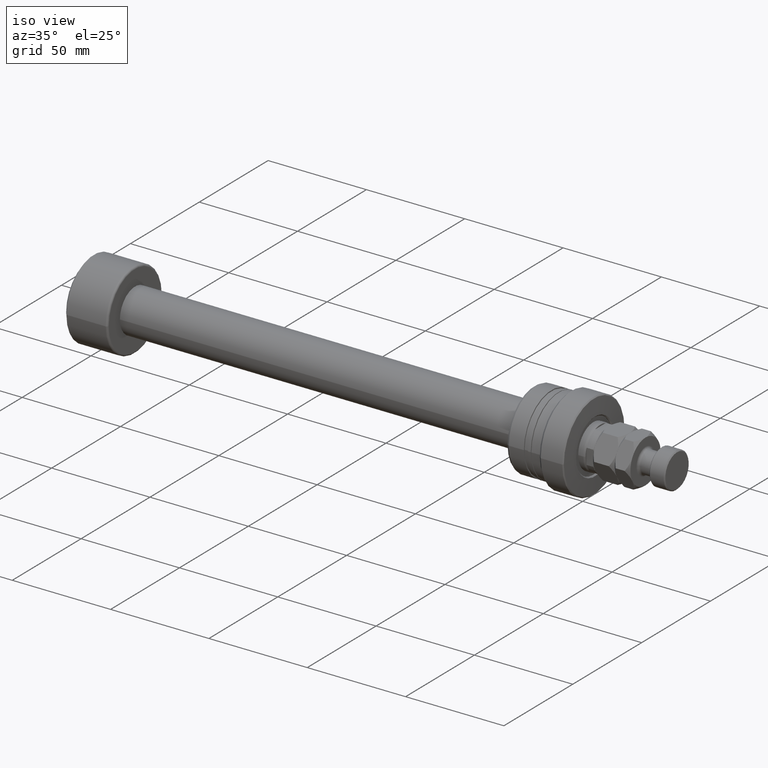
[diagram: clean part render]
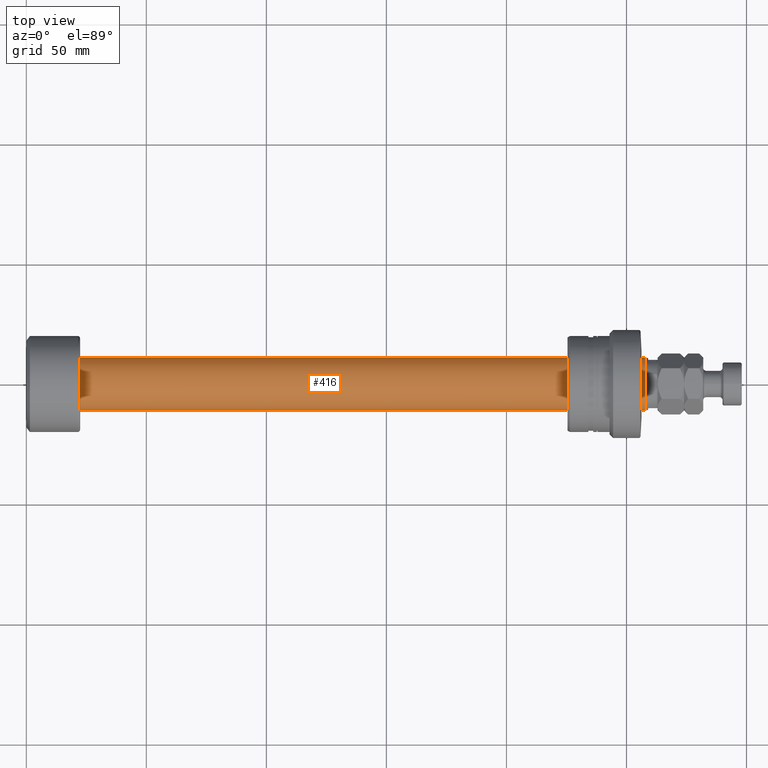
[diagram: tour spotlight — one face highlighted and labeled with its STEP entity id]
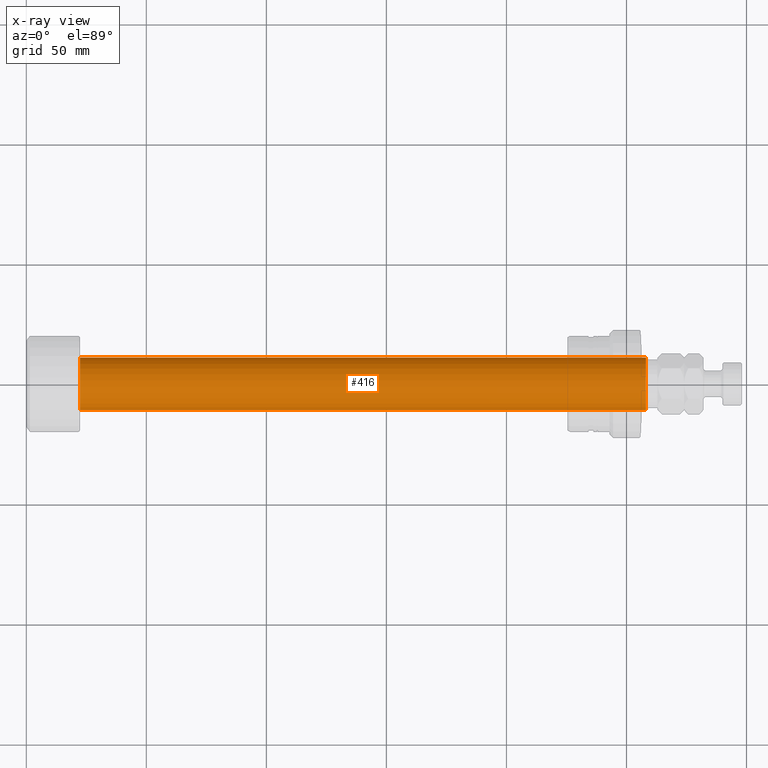
[diagram: x-ray of the same camera — body ghosted, this tour face saturated]
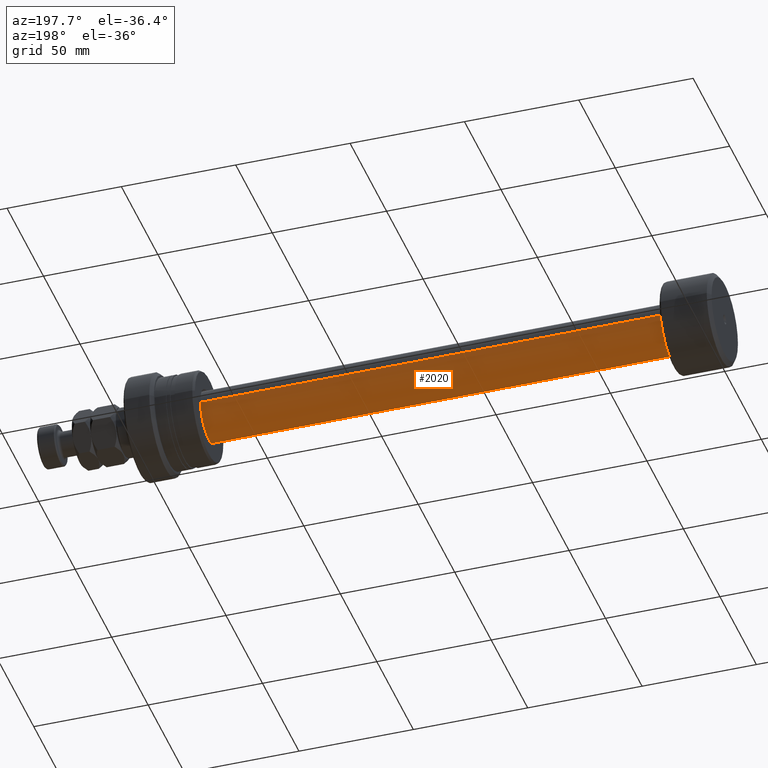
[diagram: tour spotlight — one face highlighted and labeled with its STEP entity id]
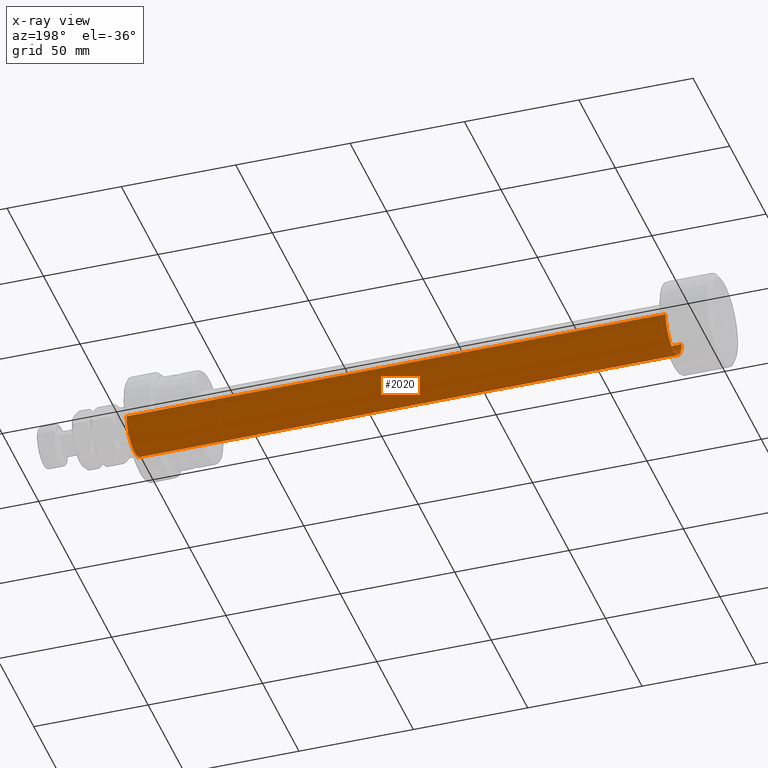
[diagram: x-ray of the same camera — body ghosted, this tour face saturated]
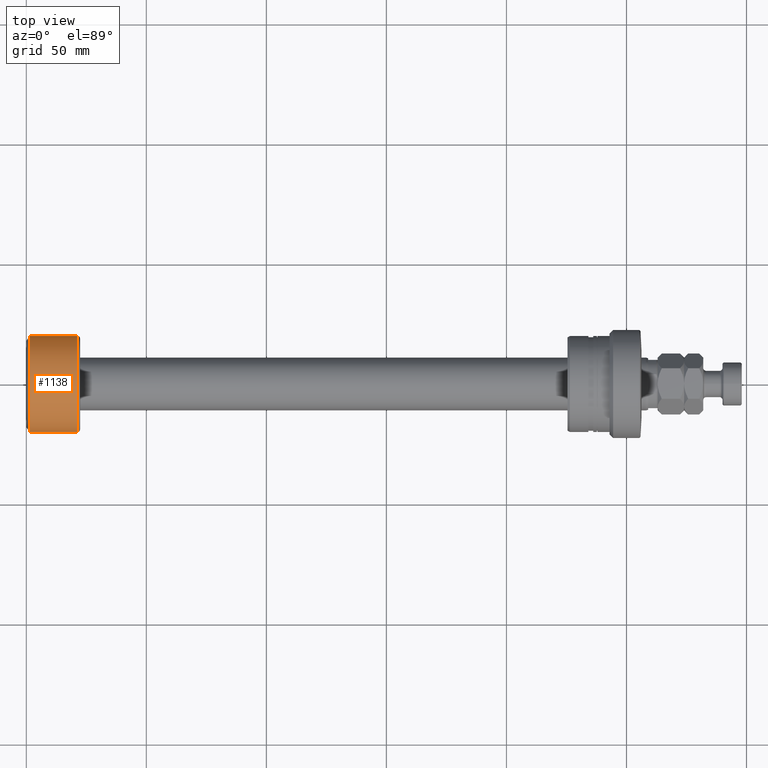
[diagram: tour spotlight — one face highlighted and labeled with its STEP entity id]
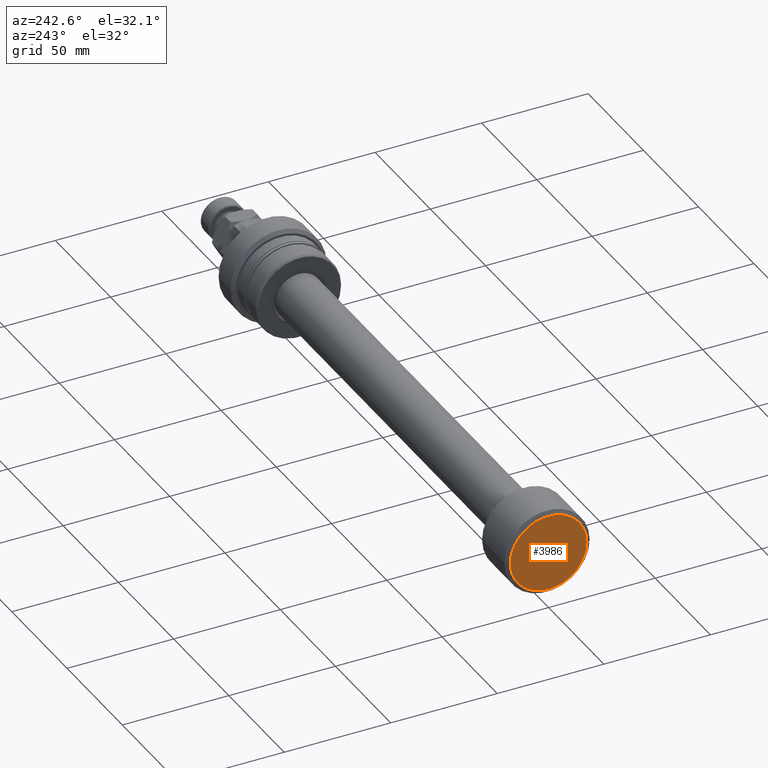
[diagram: tour spotlight — one face highlighted and labeled with its STEP entity id]
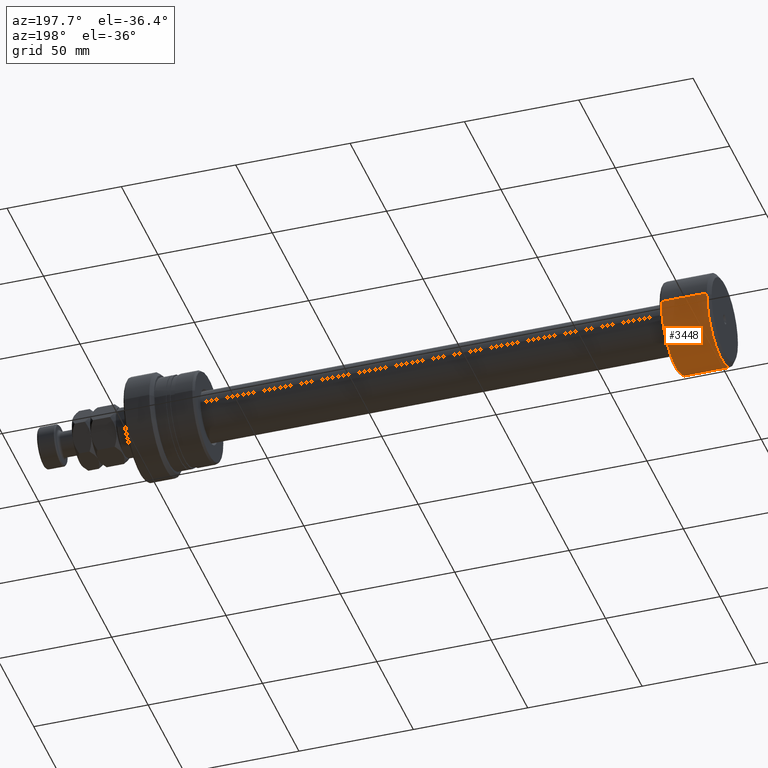
[diagram: tour spotlight — one face highlighted and labeled with its STEP entity id]
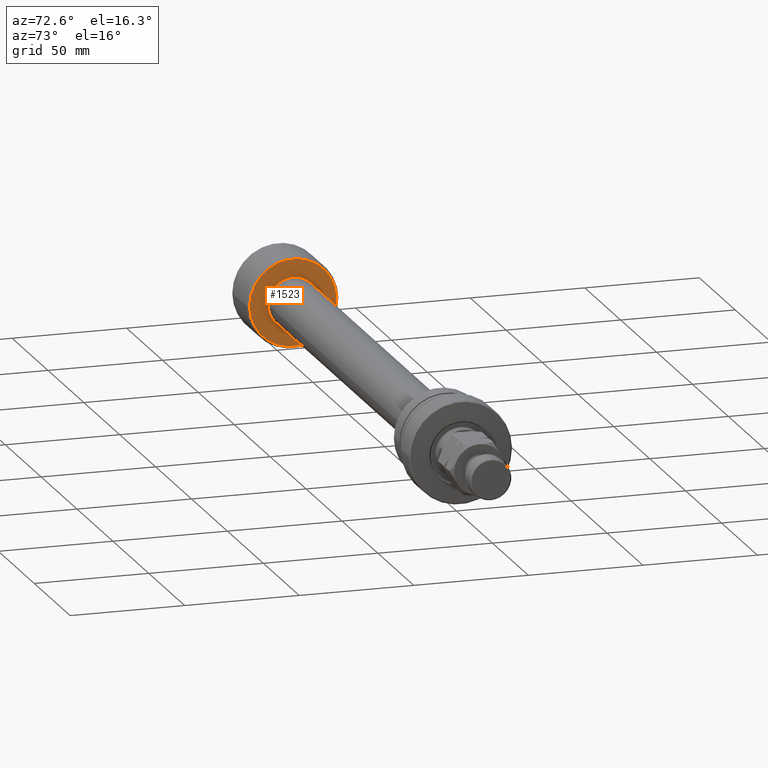
[diagram: tour spotlight — one face highlighted and labeled with its STEP entity id]
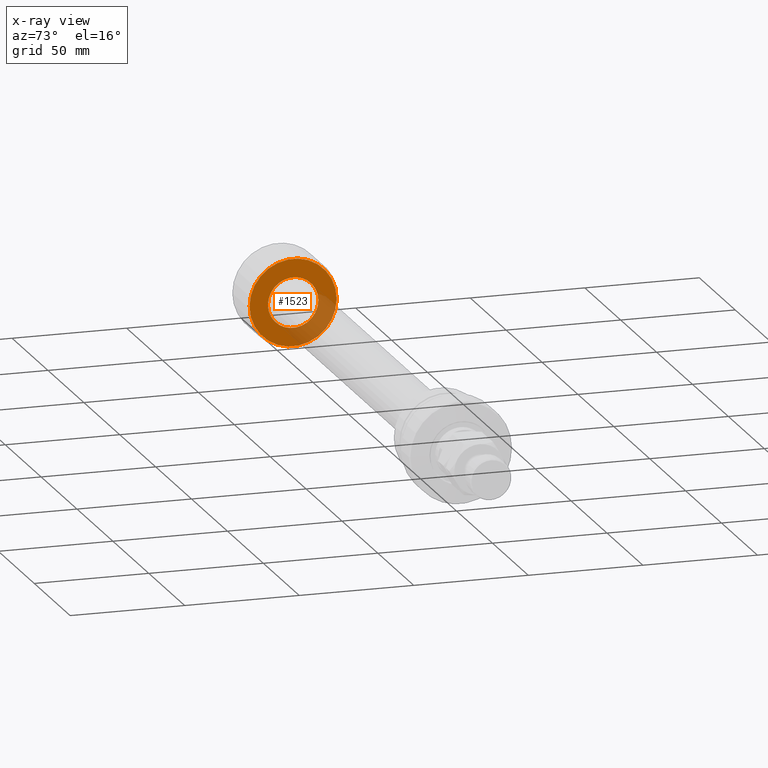
[diagram: x-ray of the same camera — body ghosted, this tour face saturated]
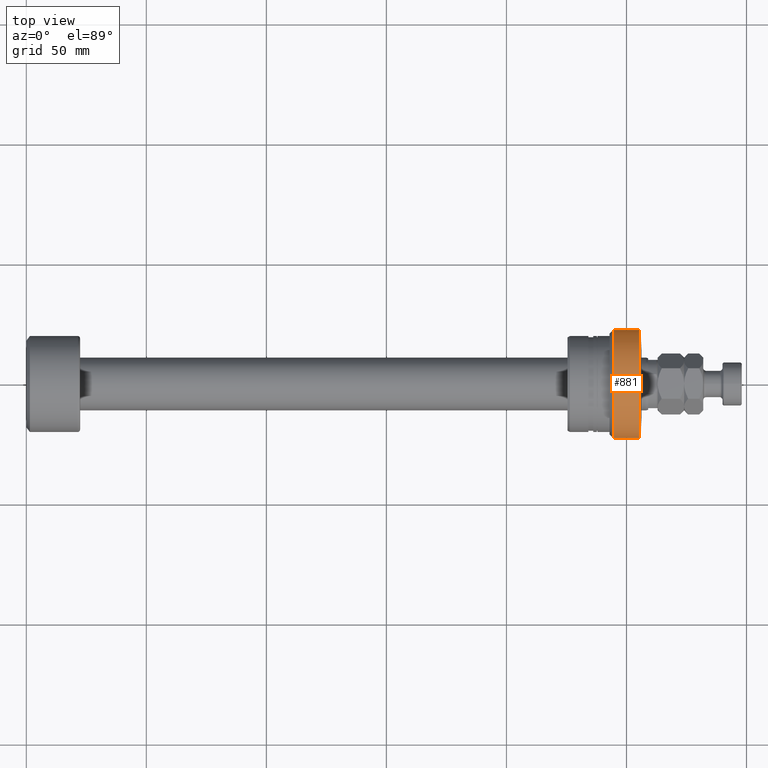
[diagram: tour spotlight — one face highlighted and labeled with its STEP entity id]
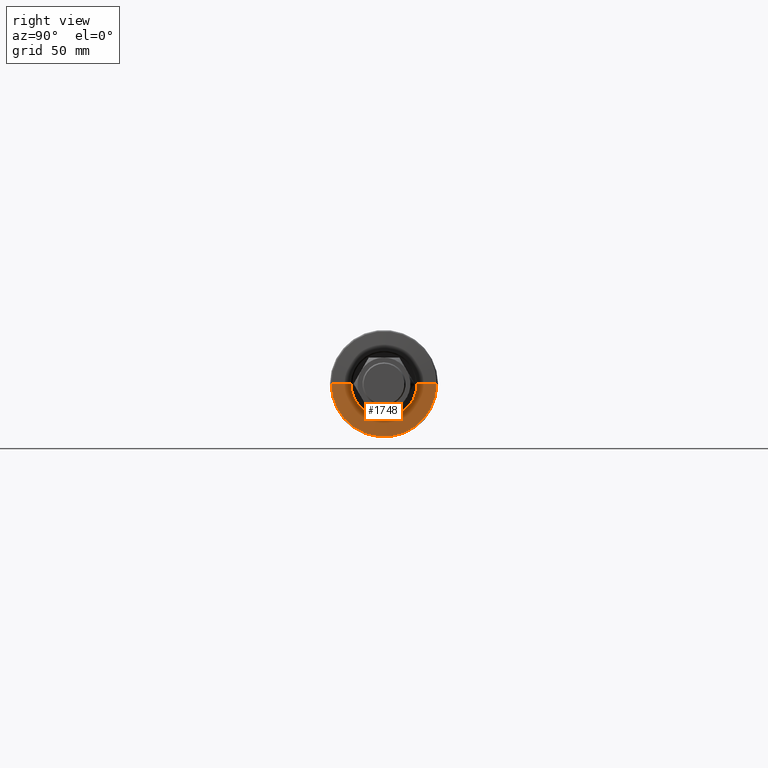
[diagram: tour spotlight — one face highlighted and labeled with its STEP entity id]
A machine part: a face-by-face anatomy tour. The part has 131 B-rep faces; the first image is the clean iso view, then the 8 largest visible faces are spotlighted one at a time (largest first), each with its STEP entity span.

Face 1 — top view, entity #416. An x-ray twin of the same camera follows (body ghosted, this face saturated) — the face is partly hidden behind the body. In plain terms, the highlighted cylindrical surface (edge-blend (fillet) strip) has radius 11 mm, axis along (-1, -0, -0).
Definition (entity closure, byte-faithful):
#199 = DIRECTION ( 'NONE',  ( -1.000000000000000000, -1.069542322069065801E-17, -0.000000000000000000 ) ) ;
#393 = EDGE_CURVE ( 'NONE', #2122, #2797, #2016, .T. ) ;
#416 = ADVANCED_FACE ( 'NONE', ( #3075 ), #3095, .T. ) ;
#436 = DIRECTION ( 'NONE',  ( -1.000000000000000000, -1.069542322069065801E-17, -0.000000000000000000 ) ) ;
#506 = ORIENTED_EDGE ( 'NONE', *, *, #393, .T. ) ;
#537 = DIRECTION ( 'NONE',  ( -1.000000000000000000, -1.069542322069065801E-17, -0.000000000000000000 ) ) ;
#579 = CARTESIAN_POINT ( 'NONE',  ( 258.0667575123237611, -11.00000000000019362, 0.000000000000000000 ) ) ;
#830 = AXIS2_PLACEMENT_3D ( 'NONE', #924, #537, #2183 ) ;
#897 = VECTOR ( 'NONE', #3565, 1000.000000000000000 ) ;
#920 = CARTESIAN_POINT ( 'NONE',  ( 22.40000000000000924, 11.00000000000000000, 1.347111479062094518E-15 ) ) ;
#924 = CARTESIAN_POINT ( 'NONE',  ( 258.0667575123237611, 2.760133190785652966E-15, 0.000000000000000000 ) ) ;
#944 = EDGE_CURVE ( 'NONE', #2329, #2797, #1421, .T. ) ;
#991 = CARTESIAN_POINT ( 'NONE',  ( 1.176496554275982935E-16, -11.00000000000009770, 0.000000000000000000 ) ) ;
#1118 = CARTESIAN_POINT ( 'NONE',  ( 22.40000000000000924, 2.395774801434708725E-16, 0.000000000000000000 ) ) ;
#1122 = CARTESIAN_POINT ( 'NONE',  ( 22.40000000000000924, -11.00000000000000000, 0.000000000000000000 ) ) ;
#1212 = ORIENTED_EDGE ( 'NONE', *, *, #2457, .T. ) ;
#1345 = EDGE_LOOP ( 'NONE', ( #1212, #506, #2593, #2568 ) ) ;
#1359 = AXIS2_PLACEMENT_3D ( 'NONE', #2175, #1557, #1496 ) ;
#1421 = CIRCLE ( 'NONE', #3633, 11.00000000000000000 ) ;
#1496 = DIRECTION ( 'NONE',  ( 1.069542322069065955E-17, -1.000000000000000000, 0.000000000000000000 ) ) ;
#1557 = DIRECTION ( 'NONE',  ( -1.000000000000000000, -1.069542322069065801E-17, -0.000000000000000000 ) ) ;
#1632 = VERTEX_POINT ( 'NONE', #579 ) ;
#2016 = LINE ( 'NONE', #3274, #3208 ) ;
#2021 = CARTESIAN_POINT ( 'NONE',  ( 258.0667575123237611, 11.00000000000020073, 1.347111479062112859E-15 ) ) ;
#2122 = VERTEX_POINT ( 'NONE', #2021 ) ;
#2175 = CARTESIAN_POINT ( 'NONE',  ( 0.000000000000000000, 0.000000000000000000, 0.000000000000000000 ) ) ;
#2183 = DIRECTION ( 'NONE',  ( 0.000000000000000000, -1.000000000000000000, 0.000000000000000000 ) ) ;
#2329 = VERTEX_POINT ( 'NONE', #1122 ) ;
#2457 = EDGE_CURVE ( 'NONE', #1632, #2122, #2878, .T. ) ;
#2568 = ORIENTED_EDGE ( 'NONE', *, *, #3041, .F. ) ;
#2593 = ORIENTED_EDGE ( 'NONE', *, *, #944, .F. ) ;
#2797 = VERTEX_POINT ( 'NONE', #920 ) ;
#2864 = LINE ( 'NONE', #991, #897 ) ;
#2878 = CIRCLE ( 'NONE', #830, 11.00000000000019718 ) ;
#3041 = EDGE_CURVE ( 'NONE', #1632, #2329, #2864, .T. ) ;
#3075 = FACE_OUTER_BOUND ( 'NONE', #1345, .T. ) ;
#3095 = CYLINDRICAL_SURFACE ( 'NONE', #1359, 11.00000000000009770 ) ;
#3208 = VECTOR ( 'NONE', #436, 1000.000000000000000 ) ;
#3274 = CARTESIAN_POINT ( 'NONE',  ( -1.176496554275982935E-16, 11.00000000000009770, 1.347111479062100632E-15 ) ) ;
#3565 = DIRECTION ( 'NONE',  ( -1.000000000000000000, -1.069542322069065801E-17, -0.000000000000000000 ) ) ;
#3633 = AXIS2_PLACEMENT_3D ( 'NONE', #1118, #199, #3702 ) ;
#3702 = DIRECTION ( 'NONE',  ( 0.000000000000000000, -1.000000000000000000, 0.000000000000000000 ) ) ;

Face 2 — auxiliary view, entity #2020. An x-ray twin of the same camera follows (body ghosted, this face saturated) — the face is partly hidden behind the body. In plain terms, the highlighted cylindrical surface (edge-blend (fillet) strip) has radius 11 mm, axis along (-1, -0, -0).
Definition (entity closure, byte-faithful):
#15 = AXIS2_PLACEMENT_3D ( 'NONE', #1736, #3552, #432 ) ;
#88 = DIRECTION ( 'NONE',  ( -1.000000000000000000, -1.069542322069065801E-17, -0.000000000000000000 ) ) ;
#364 = CARTESIAN_POINT ( 'NONE',  ( 22.40000000000000924, 2.395774801434708725E-16, 0.000000000000000000 ) ) ;
#393 = EDGE_CURVE ( 'NONE', #2122, #2797, #2016, .T. ) ;
#401 = FACE_OUTER_BOUND ( 'NONE', #2489, .T. ) ;
#432 = DIRECTION ( 'NONE',  ( 0.000000000000000000, -1.000000000000000000, 0.000000000000000000 ) ) ;
#436 = DIRECTION ( 'NONE',  ( -1.000000000000000000, -1.069542322069065801E-17, -0.000000000000000000 ) ) ;
#579 = CARTESIAN_POINT ( 'NONE',  ( 258.0667575123237611, -11.00000000000019362, 0.000000000000000000 ) ) ;
#632 = ORIENTED_EDGE ( 'NONE', *, *, #3041, .T. ) ;
#701 = DIRECTION ( 'NONE',  ( 0.000000000000000000, -1.000000000000000000, 0.000000000000000000 ) ) ;
#897 = VECTOR ( 'NONE', #3565, 1000.000000000000000 ) ;
#920 = CARTESIAN_POINT ( 'NONE',  ( 22.40000000000000924, 11.00000000000000000, 1.347111479062094518E-15 ) ) ;
#991 = CARTESIAN_POINT ( 'NONE',  ( 1.176496554275982935E-16, -11.00000000000009770, 0.000000000000000000 ) ) ;
#1059 = EDGE_CURVE ( 'NONE', #2122, #1632, #3292, .T. ) ;
#1095 = AXIS2_PLACEMENT_3D ( 'NONE', #1960, #88, #2322 ) ;
#1122 = CARTESIAN_POINT ( 'NONE',  ( 22.40000000000000924, -11.00000000000000000, 0.000000000000000000 ) ) ;
#1632 = VERTEX_POINT ( 'NONE', #579 ) ;
#1654 = ORIENTED_EDGE ( 'NONE', *, *, #2563, .F. ) ;
#1736 = CARTESIAN_POINT ( 'NONE',  ( 258.0667575123237611, 2.760133190785652966E-15, 0.000000000000000000 ) ) ;
#1960 = CARTESIAN_POINT ( 'NONE',  ( 0.000000000000000000, 0.000000000000000000, 0.000000000000000000 ) ) ;
#2016 = LINE ( 'NONE', #3274, #3208 ) ;
#2020 = ADVANCED_FACE ( 'NONE', ( #401 ), #4106, .T. ) ;
#2021 = CARTESIAN_POINT ( 'NONE',  ( 258.0667575123237611, 11.00000000000020073, 1.347111479062112859E-15 ) ) ;
#2122 = VERTEX_POINT ( 'NONE', #2021 ) ;
#2270 = DIRECTION ( 'NONE',  ( -1.000000000000000000, -1.069542322069065801E-17, -0.000000000000000000 ) ) ;
#2284 = CIRCLE ( 'NONE', #3930, 11.00000000000000000 ) ;
#2322 = DIRECTION ( 'NONE',  ( 1.069542322069065955E-17, -1.000000000000000000, 0.000000000000000000 ) ) ;
#2329 = VERTEX_POINT ( 'NONE', #1122 ) ;
#2489 = EDGE_LOOP ( 'NONE', ( #3191, #3185, #632, #1654 ) ) ;
#2563 = EDGE_CURVE ( 'NONE', #2797, #2329, #2284, .T. ) ;
#2797 = VERTEX_POINT ( 'NONE', #920 ) ;
#2864 = LINE ( 'NONE', #991, #897 ) ;
#3041 = EDGE_CURVE ( 'NONE', #1632, #2329, #2864, .T. ) ;
#3185 = ORIENTED_EDGE ( 'NONE', *, *, #1059, .T. ) ;
#3191 = ORIENTED_EDGE ( 'NONE', *, *, #393, .F. ) ;
#3208 = VECTOR ( 'NONE', #436, 1000.000000000000000 ) ;
#3274 = CARTESIAN_POINT ( 'NONE',  ( -1.176496554275982935E-16, 11.00000000000009770, 1.347111479062100632E-15 ) ) ;
#3292 = CIRCLE ( 'NONE', #15, 11.00000000000019718 ) ;
#3552 = DIRECTION ( 'NONE',  ( -1.000000000000000000, -1.069542322069065801E-17, -0.000000000000000000 ) ) ;
#3565 = DIRECTION ( 'NONE',  ( -1.000000000000000000, -1.069542322069065801E-17, -0.000000000000000000 ) ) ;
#3930 = AXIS2_PLACEMENT_3D ( 'NONE', #364, #2270, #701 ) ;
#4106 = CYLINDRICAL_SURFACE ( 'NONE', #1095, 11.00000000000009770 ) ;

Face 3 — top view, entity #1138. In plain terms, the highlighted cylindrical surface (partial cylindrical patch) has radius 20 mm, axis along (-1, -0, -0).
Definition (entity closure, byte-faithful):
#105 = DIRECTION ( 'NONE',  ( -1.000000000000000000, -1.069542322069065801E-17, -0.000000000000000000 ) ) ;
#151 = DIRECTION ( 'NONE',  ( -1.000000000000000000, -1.069542322069065801E-17, -0.000000000000000000 ) ) ;
#191 = CARTESIAN_POINT ( 'NONE',  ( -2.139084644138131786E-16, 20.00000000000000000, 2.449293598294706513E-15 ) ) ;
#371 = AXIS2_PLACEMENT_3D ( 'NONE', #1265, #4080, #628 ) ;
#383 = LINE ( 'NONE', #191, #2955 ) ;
#501 = CIRCLE ( 'NONE', #371, 20.00000000000000000 ) ;
#538 = CARTESIAN_POINT ( 'NONE',  ( 1.500000000000002887, -20.00000000000000000, 2.449293598294706513E-15 ) ) ;
#620 = CIRCLE ( 'NONE', #1764, 20.00000000000000000 ) ;
#628 = DIRECTION ( 'NONE',  ( 1.084202172485504434E-17, -1.000000000000000000, 0.000000000000000000 ) ) ;
#738 = CARTESIAN_POINT ( 'NONE',  ( 2.139084644138131786E-16, -20.00000000000000000, 0.000000000000000000 ) ) ;
#744 = FACE_OUTER_BOUND ( 'NONE', #1313, .T. ) ;
#1138 = ADVANCED_FACE ( 'NONE', ( #744 ), #3271, .T. ) ;
#1177 = VERTEX_POINT ( 'NONE', #1504 ) ;
#1265 = CARTESIAN_POINT ( 'NONE',  ( 1.500000000000002442, 1.604313483103601552E-17, 0.000000000000000000 ) ) ;
#1313 = EDGE_LOOP ( 'NONE', ( #2792, #3159, #1527, #1561 ) ) ;
#1392 = DIRECTION ( 'NONE',  ( -1.000000000000000000, -1.069542322069065801E-17, -0.000000000000000000 ) ) ;
#1405 = DIRECTION ( 'NONE',  ( 1.069542322069065955E-17, -1.000000000000000000, 0.000000000000000000 ) ) ;
#1411 = DIRECTION ( 'NONE',  ( 0.000000000000000000, -1.000000000000000000, 0.000000000000000000 ) ) ;
#1504 = CARTESIAN_POINT ( 'NONE',  ( 21.40000000000000924, -20.00000000000000000, 0.000000000000000000 ) ) ;
#1527 = ORIENTED_EDGE ( 'NONE', *, *, #2854, .F. ) ;
#1561 = ORIENTED_EDGE ( 'NONE', *, *, #1722, .F. ) ;
#1722 = EDGE_CURVE ( 'NONE', #1177, #3720, #2364, .T. ) ;
#1764 = AXIS2_PLACEMENT_3D ( 'NONE', #3310, #151, #1411 ) ;
#1769 = EDGE_CURVE ( 'NONE', #1177, #3992, #620, .T. ) ;
#1884 = CARTESIAN_POINT ( 'NONE',  ( 1.500000000000002442, 20.00000000000000000, 0.000000000000000000 ) ) ;
#2079 = AXIS2_PLACEMENT_3D ( 'NONE', #2957, #105, #1405 ) ;
#2364 = LINE ( 'NONE', #738, #3212 ) ;
#2379 = DIRECTION ( 'NONE',  ( -1.000000000000000000, -1.069542322069065801E-17, -0.000000000000000000 ) ) ;
#2792 = ORIENTED_EDGE ( 'NONE', *, *, #1769, .T. ) ;
#2823 = VERTEX_POINT ( 'NONE', #1884 ) ;
#2854 = EDGE_CURVE ( 'NONE', #3720, #2823, #501, .T. ) ;
#2955 = VECTOR ( 'NONE', #2379, 1000.000000000000000 ) ;
#2957 = CARTESIAN_POINT ( 'NONE',  ( 0.000000000000000000, 0.000000000000000000, 0.000000000000000000 ) ) ;
#3089 = EDGE_CURVE ( 'NONE', #3992, #2823, #383, .T. ) ;
#3159 = ORIENTED_EDGE ( 'NONE', *, *, #3089, .T. ) ;
#3212 = VECTOR ( 'NONE', #1392, 1000.000000000000000 ) ;
#3271 = CYLINDRICAL_SURFACE ( 'NONE', #2079, 20.00000000000000000 ) ;
#3310 = CARTESIAN_POINT ( 'NONE',  ( 21.40000000000000924, 2.288820569227802283E-16, 0.000000000000000000 ) ) ;
#3356 = CARTESIAN_POINT ( 'NONE',  ( 21.40000000000000924, 20.00000000000000000, 2.449293598294706513E-15 ) ) ;
#3720 = VERTEX_POINT ( 'NONE', #538 ) ;
#3992 = VERTEX_POINT ( 'NONE', #3356 ) ;
#4080 = DIRECTION ( 'NONE',  ( -1.000000000000000000, -1.069542322069065801E-17, -0.000000000000000000 ) ) ;

Face 4 — auxiliary view, entity #3986. In plain terms, the highlighted planar face has unit normal (-1, -0, 0).
Definition (entity closure, byte-faithful):
#288 = ORIENTED_EDGE ( 'NONE', *, *, #2177, .T. ) ;
#325 = VERTEX_POINT ( 'NONE', #1998 ) ;
#373 = AXIS2_PLACEMENT_3D ( 'NONE', #562, #3157, #3090 ) ;
#480 = DIRECTION ( 'NONE',  ( -1.000000000000000000, -1.069542322069065801E-17, 0.000000000000000000 ) ) ;
#559 = DIRECTION ( 'NONE',  ( 1.069542322069065647E-17, -1.000000000000000000, 0.000000000000000000 ) ) ;
#562 = CARTESIAN_POINT ( 'NONE',  ( 2.011846620492804129E-15, 2.151755106128676308E-32, 0.000000000000000000 ) ) ;
#630 = AXIS2_PLACEMENT_3D ( 'NONE', #2849, #2869, #945 ) ;
#643 = EDGE_CURVE ( 'NONE', #2198, #4103, #3280, .T. ) ;
#854 = DIRECTION ( 'NONE',  ( -1.000000000000000000, -1.069542322069065801E-17, -0.000000000000000000 ) ) ;
#945 = DIRECTION ( 'NONE',  ( 1.069542322069064722E-17, -1.000000000000000000, 0.000000000000000000 ) ) ;
#1142 = CARTESIAN_POINT ( 'NONE',  ( 1.005923310246402065E-15, 0.000000000000000000, 0.000000000000000000 ) ) ;
#1413 = ORIENTED_EDGE ( 'NONE', *, *, #3323, .T. ) ;
#1480 = ORIENTED_EDGE ( 'NONE', *, *, #2410, .T. ) ;
#1739 = CARTESIAN_POINT ( 'NONE',  ( 1.005923310246402065E-15, 1.075877553064338154E-32, 0.000000000000000000 ) ) ;
#1878 = CARTESIAN_POINT ( 'NONE',  ( 2.011846620492804129E-15, 2.151755106128676308E-32, 0.000000000000000000 ) ) ;
#1998 = CARTESIAN_POINT ( 'NONE',  ( 1.005923310246402065E-15, 0.000000000000000000, 2.074999999999965539 ) ) ;
#2147 = CIRCLE ( 'NONE', #3145, 2.074999999999965539 ) ;
#2177 = EDGE_CURVE ( 'NONE', #3507, #325, #2147, .T. ) ;
#2180 = EDGE_LOOP ( 'NONE', ( #1480, #288 ) ) ;
#2198 = VERTEX_POINT ( 'NONE', #2991 ) ;
#2410 = EDGE_CURVE ( 'NONE', #325, #3507, #4057, .T. ) ;
#2476 = DIRECTION ( 'NONE',  ( 1.069542322069064722E-17, -1.000000000000000000, 0.000000000000000000 ) ) ;
#2665 = FACE_BOUND ( 'NONE', #2180, .T. ) ;
#2698 = FACE_OUTER_BOUND ( 'NONE', #4000, .T. ) ;
#2849 = CARTESIAN_POINT ( 'NONE',  ( 1.005923310246402065E-15, 0.000000000000000000, 0.000000000000000000 ) ) ;
#2869 = DIRECTION ( 'NONE',  ( 1.000000000000000000, 1.069542322069065801E-17, 0.000000000000000000 ) ) ;
#2964 = PLANE ( 'NONE',  #3812 ) ;
#2991 = CARTESIAN_POINT ( 'NONE',  ( 2.204364238465235822E-15, -18.00000000000000355, 2.326828918379971365E-15 ) ) ;
#3053 = ORIENTED_EDGE ( 'NONE', *, *, #643, .T. ) ;
#3090 = DIRECTION ( 'NONE',  ( 1.069542322069065647E-17, -1.000000000000000000, 0.000000000000000000 ) ) ;
#3145 = AXIS2_PLACEMENT_3D ( 'NONE', #1142, #4041, #2476 ) ;
#3157 = DIRECTION ( 'NONE',  ( -1.000000000000000000, -1.069542322069065801E-17, -0.000000000000000000 ) ) ;
#3280 = CIRCLE ( 'NONE', #3531, 18.00000000000000355 ) ;
#3323 = EDGE_CURVE ( 'NONE', #4103, #2198, #3354, .T. ) ;
#3354 = CIRCLE ( 'NONE', #373, 18.00000000000000355 ) ;
#3507 = VERTEX_POINT ( 'NONE', #3982 ) ;
#3531 = AXIS2_PLACEMENT_3D ( 'NONE', #1878, #854, #559 ) ;
#3595 = DIRECTION ( 'NONE',  ( 1.069542322069065801E-17, -1.000000000000000000, 0.000000000000000000 ) ) ;
#3752 = CARTESIAN_POINT ( 'NONE',  ( 1.819329002520372041E-15, 18.00000000000000355, 0.000000000000000000 ) ) ;
#3812 = AXIS2_PLACEMENT_3D ( 'NONE', #1739, #480, #3595 ) ;
#3982 = CARTESIAN_POINT ( 'NONE',  ( 1.005923310246402065E-15, 2.541142108230715670E-16, -2.074999999999965539 ) ) ;
#3986 = ADVANCED_FACE ( 'NONE', ( #2665, #2698 ), #2964, .T. ) ;
#4000 = EDGE_LOOP ( 'NONE', ( #1413, #3053 ) ) ;
#4041 = DIRECTION ( 'NONE',  ( 1.000000000000000000, 1.069542322069065801E-17, 0.000000000000000000 ) ) ;
#4057 = CIRCLE ( 'NONE', #630, 2.074999999999965539 ) ;
#4103 = VERTEX_POINT ( 'NONE', #3752 ) ;

Face 5 — auxiliary view, entity #3448. In plain terms, the highlighted cylindrical surface (partial cylindrical patch) has radius 20 mm, axis along (-1, -0, -0).
Definition (entity closure, byte-faithful):
#91 = FACE_OUTER_BOUND ( 'NONE', #2230, .T. ) ;
#191 = CARTESIAN_POINT ( 'NONE',  ( -2.139084644138131786E-16, 20.00000000000000000, 2.449293598294706513E-15 ) ) ;
#322 = DIRECTION ( 'NONE',  ( -1.000000000000000000, -1.069542322069065801E-17, -0.000000000000000000 ) ) ;
#383 = LINE ( 'NONE', #191, #2955 ) ;
#538 = CARTESIAN_POINT ( 'NONE',  ( 1.500000000000002887, -20.00000000000000000, 2.449293598294706513E-15 ) ) ;
#738 = CARTESIAN_POINT ( 'NONE',  ( 2.139084644138131786E-16, -20.00000000000000000, 0.000000000000000000 ) ) ;
#788 = ORIENTED_EDGE ( 'NONE', *, *, #3089, .F. ) ;
#1033 = ORIENTED_EDGE ( 'NONE', *, *, #1606, .T. ) ;
#1177 = VERTEX_POINT ( 'NONE', #1504 ) ;
#1376 = AXIS2_PLACEMENT_3D ( 'NONE', #1409, #2647, #1740 ) ;
#1391 = CARTESIAN_POINT ( 'NONE',  ( 0.000000000000000000, 0.000000000000000000, 0.000000000000000000 ) ) ;
#1392 = DIRECTION ( 'NONE',  ( -1.000000000000000000, -1.069542322069065801E-17, -0.000000000000000000 ) ) ;
#1409 = CARTESIAN_POINT ( 'NONE',  ( 1.500000000000002442, 1.604313483103601552E-17, 0.000000000000000000 ) ) ;
#1504 = CARTESIAN_POINT ( 'NONE',  ( 21.40000000000000924, -20.00000000000000000, 0.000000000000000000 ) ) ;
#1606 = EDGE_CURVE ( 'NONE', #3992, #1177, #2728, .T. ) ;
#1722 = EDGE_CURVE ( 'NONE', #1177, #3720, #2364, .T. ) ;
#1740 = DIRECTION ( 'NONE',  ( 1.084202172485504434E-17, -1.000000000000000000, 0.000000000000000000 ) ) ;
#1884 = CARTESIAN_POINT ( 'NONE',  ( 1.500000000000002442, 20.00000000000000000, 0.000000000000000000 ) ) ;
#1898 = CIRCLE ( 'NONE', #1376, 20.00000000000000000 ) ;
#2230 = EDGE_LOOP ( 'NONE', ( #788, #1033, #2982, #3816 ) ) ;
#2336 = EDGE_CURVE ( 'NONE', #2823, #3720, #1898, .T. ) ;
#2364 = LINE ( 'NONE', #738, #3212 ) ;
#2379 = DIRECTION ( 'NONE',  ( -1.000000000000000000, -1.069542322069065801E-17, -0.000000000000000000 ) ) ;
#2469 = AXIS2_PLACEMENT_3D ( 'NONE', #4008, #3087, #3361 ) ;
#2549 = AXIS2_PLACEMENT_3D ( 'NONE', #1391, #322, #3845 ) ;
#2647 = DIRECTION ( 'NONE',  ( -1.000000000000000000, -1.069542322069065801E-17, -0.000000000000000000 ) ) ;
#2728 = CIRCLE ( 'NONE', #2469, 20.00000000000000000 ) ;
#2823 = VERTEX_POINT ( 'NONE', #1884 ) ;
#2955 = VECTOR ( 'NONE', #2379, 1000.000000000000000 ) ;
#2982 = ORIENTED_EDGE ( 'NONE', *, *, #1722, .T. ) ;
#3087 = DIRECTION ( 'NONE',  ( -1.000000000000000000, -1.069542322069065801E-17, -0.000000000000000000 ) ) ;
#3089 = EDGE_CURVE ( 'NONE', #3992, #2823, #383, .T. ) ;
#3212 = VECTOR ( 'NONE', #1392, 1000.000000000000000 ) ;
#3356 = CARTESIAN_POINT ( 'NONE',  ( 21.40000000000000924, 20.00000000000000000, 2.449293598294706513E-15 ) ) ;
#3361 = DIRECTION ( 'NONE',  ( 0.000000000000000000, -1.000000000000000000, 0.000000000000000000 ) ) ;
#3448 = ADVANCED_FACE ( 'NONE', ( #91 ), #3829, .T. ) ;
#3720 = VERTEX_POINT ( 'NONE', #538 ) ;
#3816 = ORIENTED_EDGE ( 'NONE', *, *, #2336, .F. ) ;
#3829 = CYLINDRICAL_SURFACE ( 'NONE', #2549, 20.00000000000000000 ) ;
#3845 = DIRECTION ( 'NONE',  ( 1.069542322069065955E-17, -1.000000000000000000, 0.000000000000000000 ) ) ;
#3992 = VERTEX_POINT ( 'NONE', #3356 ) ;
#4008 = CARTESIAN_POINT ( 'NONE',  ( 21.40000000000000924, 2.288820569227802283E-16, 0.000000000000000000 ) ) ;

Face 6 — auxiliary view, entity #1523. An x-ray twin of the same camera follows (body ghosted, this face saturated) — the face is partly hidden behind the body. In plain terms, the highlighted planar face has unit normal (-1, -0, 0).
Definition (entity closure, byte-faithful):
#198 = EDGE_LOOP ( 'NONE', ( #548, #962 ) ) ;
#199 = DIRECTION ( 'NONE',  ( -1.000000000000000000, -1.069542322069065801E-17, -0.000000000000000000 ) ) ;
#233 = FACE_BOUND ( 'NONE', #2082, .T. ) ;
#364 = CARTESIAN_POINT ( 'NONE',  ( 22.40000000000000924, 2.395774801434708725E-16, 0.000000000000000000 ) ) ;
#431 = CIRCLE ( 'NONE', #1892, 19.00000000000000000 ) ;
#470 = FACE_OUTER_BOUND ( 'NONE', #198, .T. ) ;
#548 = ORIENTED_EDGE ( 'NONE', *, *, #1808, .F. ) ;
#554 = CIRCLE ( 'NONE', #1157, 19.00000000000000000 ) ;
#701 = DIRECTION ( 'NONE',  ( 0.000000000000000000, -1.000000000000000000, 0.000000000000000000 ) ) ;
#794 = EDGE_CURVE ( 'NONE', #2104, #2515, #431, .T. ) ;
#920 = CARTESIAN_POINT ( 'NONE',  ( 22.40000000000000924, 11.00000000000000000, 1.347111479062094518E-15 ) ) ;
#944 = EDGE_CURVE ( 'NONE', #2329, #2797, #1421, .T. ) ;
#962 = ORIENTED_EDGE ( 'NONE', *, *, #794, .F. ) ;
#1066 = DIRECTION ( 'NONE',  ( 1.069542322069065801E-17, -1.000000000000000000, 0.000000000000000000 ) ) ;
#1118 = CARTESIAN_POINT ( 'NONE',  ( 22.40000000000000924, 2.395774801434708725E-16, 0.000000000000000000 ) ) ;
#1122 = CARTESIAN_POINT ( 'NONE',  ( 22.40000000000000924, -11.00000000000000000, 0.000000000000000000 ) ) ;
#1157 = AXIS2_PLACEMENT_3D ( 'NONE', #1879, #1209, #3452 ) ;
#1209 = DIRECTION ( 'NONE',  ( -1.000000000000000000, -1.069542322069065801E-17, -0.000000000000000000 ) ) ;
#1337 = DIRECTION ( 'NONE',  ( -1.000000000000000000, -1.069542322069065801E-17, -0.000000000000000000 ) ) ;
#1421 = CIRCLE ( 'NONE', #3633, 11.00000000000000000 ) ;
#1523 = ADVANCED_FACE ( 'NONE', ( #470, #233 ), #3778, .F. ) ;
#1712 = ORIENTED_EDGE ( 'NONE', *, *, #2563, .T. ) ;
#1808 = EDGE_CURVE ( 'NONE', #2515, #2104, #554, .T. ) ;
#1879 = CARTESIAN_POINT ( 'NONE',  ( 22.40000000000000924, 2.395774801434708725E-16, 0.000000000000000000 ) ) ;
#1892 = AXIS2_PLACEMENT_3D ( 'NONE', #2902, #1337, #2582 ) ;
#2082 = EDGE_LOOP ( 'NONE', ( #3526, #1712 ) ) ;
#2104 = VERTEX_POINT ( 'NONE', #3828 ) ;
#2270 = DIRECTION ( 'NONE',  ( -1.000000000000000000, -1.069542322069065801E-17, -0.000000000000000000 ) ) ;
#2284 = CIRCLE ( 'NONE', #3930, 11.00000000000000000 ) ;
#2329 = VERTEX_POINT ( 'NONE', #1122 ) ;
#2515 = VERTEX_POINT ( 'NONE', #3510 ) ;
#2563 = EDGE_CURVE ( 'NONE', #2797, #2329, #2284, .T. ) ;
#2582 = DIRECTION ( 'NONE',  ( 0.000000000000000000, -1.000000000000000000, 0.000000000000000000 ) ) ;
#2797 = VERTEX_POINT ( 'NONE', #920 ) ;
#2853 = CARTESIAN_POINT ( 'NONE',  ( 22.40000000000000924, -11.00000000000000000, 0.000000000000000000 ) ) ;
#2902 = CARTESIAN_POINT ( 'NONE',  ( 22.40000000000000924, 2.395774801434708725E-16, 0.000000000000000000 ) ) ;
#3021 = DIRECTION ( 'NONE',  ( -1.000000000000000000, -1.069542322069065801E-17, 0.000000000000000000 ) ) ;
#3452 = DIRECTION ( 'NONE',  ( 0.000000000000000000, -1.000000000000000000, 0.000000000000000000 ) ) ;
#3510 = CARTESIAN_POINT ( 'NONE',  ( 22.40000000000000924, -19.00000000000000000, 0.000000000000000000 ) ) ;
#3526 = ORIENTED_EDGE ( 'NONE', *, *, #944, .T. ) ;
#3633 = AXIS2_PLACEMENT_3D ( 'NONE', #1118, #199, #3702 ) ;
#3702 = DIRECTION ( 'NONE',  ( 0.000000000000000000, -1.000000000000000000, 0.000000000000000000 ) ) ;
#3778 = PLANE ( 'NONE',  #3922 ) ;
#3828 = CARTESIAN_POINT ( 'NONE',  ( 22.40000000000000924, 19.00000000000000000, 2.388061258337338939E-15 ) ) ;
#3922 = AXIS2_PLACEMENT_3D ( 'NONE', #2853, #3021, #1066 ) ;
#3930 = AXIS2_PLACEMENT_3D ( 'NONE', #364, #2270, #701 ) ;

Face 7 — top view, entity #881. In plain terms, the highlighted cylindrical surface (partial cylindrical patch) has radius 22.5 mm, axis along (1, 0, 0).
Definition (entity closure, byte-faithful):
#119 = CARTESIAN_POINT ( 'NONE',  ( -1.600000000000832312, 22.50000000000017408, 0.000000000000000000 ) ) ;
#220 = VECTOR ( 'NONE', #3890, 1000.000000000000000 ) ;
#300 = CARTESIAN_POINT ( 'NONE',  ( -12.50000000000075318, 5.404401872421122820E-14, 0.000000000000000000 ) ) ;
#421 = LINE ( 'NONE', #1777, #1643 ) ;
#456 = DIRECTION ( 'NONE',  ( -3.035766082959400977E-15, 1.000000000000000000, 0.000000000000000000 ) ) ;
#653 = ORIENTED_EDGE ( 'NONE', *, *, #1885, .T. ) ;
#821 = ORIENTED_EDGE ( 'NONE', *, *, #3394, .F. ) ;
#881 = ADVANCED_FACE ( 'NONE', ( #2626 ), #2900, .T. ) ;
#939 = ORIENTED_EDGE ( 'NONE', *, *, #1032, .F. ) ;
#946 = EDGE_LOOP ( 'NONE', ( #653, #2993, #939, #821 ) ) ;
#1032 = EDGE_CURVE ( 'NONE', #3093, #3134, #3348, .T. ) ;
#1044 = CARTESIAN_POINT ( 'NONE',  ( -30.28002276692732408, 0.000000000000000000, 0.000000000000000000 ) ) ;
#1171 = CARTESIAN_POINT ( 'NONE',  ( -1.600000000000695755, -22.49999999999999645, 2.755455298081553850E-15 ) ) ;
#1426 = DIRECTION ( 'NONE',  ( 1.000000000000000000, 3.039592211588219332E-15, -0.000000000000000000 ) ) ;
#1506 = CIRCLE ( 'NONE', #2947, 22.50000000000005329 ) ;
#1643 = VECTOR ( 'NONE', #3001, 1000.000000000000000 ) ;
#1702 = EDGE_CURVE ( 'NONE', #1996, #3134, #421, .T. ) ;
#1777 = CARTESIAN_POINT ( 'NONE',  ( -30.28002276692725303, -22.50000000000006750, 2.755455298081553061E-15 ) ) ;
#1792 = CARTESIAN_POINT ( 'NONE',  ( -12.50000000000082068, 22.50000000000010658, 0.000000000000000000 ) ) ;
#1885 = EDGE_CURVE ( 'NONE', #2413, #1996, #1506, .T. ) ;
#1996 = VERTEX_POINT ( 'NONE', #2863 ) ;
#2413 = VERTEX_POINT ( 'NONE', #1792 ) ;
#2626 = FACE_OUTER_BOUND ( 'NONE', #946, .T. ) ;
#2863 = CARTESIAN_POINT ( 'NONE',  ( -12.50000000000068567, -22.50000000000000355, 2.755455298081551483E-15 ) ) ;
#2900 = CYLINDRICAL_SURFACE ( 'NONE', #3695, 22.50000000000006750 ) ;
#2930 = CARTESIAN_POINT ( 'NONE',  ( -1.600000000000763922, 8.717557383052277888E-14, 0.000000000000000000 ) ) ;
#2947 = AXIS2_PLACEMENT_3D ( 'NONE', #300, #3650, #3151 ) ;
#2979 = DIRECTION ( 'NONE',  ( 1.000000000000000000, 3.039592211588219332E-15, -0.000000000000000000 ) ) ;
#2993 = ORIENTED_EDGE ( 'NONE', *, *, #1702, .T. ) ;
#3001 = DIRECTION ( 'NONE',  ( 1.000000000000000000, 3.039592211588219332E-15, -0.000000000000000000 ) ) ;
#3011 = AXIS2_PLACEMENT_3D ( 'NONE', #2930, #2979, #456 ) ;
#3093 = VERTEX_POINT ( 'NONE', #119 ) ;
#3134 = VERTEX_POINT ( 'NONE', #1171 ) ;
#3151 = DIRECTION ( 'NONE',  ( -3.006854025026458399E-15, 1.000000000000000000, 0.000000000000000000 ) ) ;
#3278 = DIRECTION ( 'NONE',  ( -3.083952846180981011E-15, 1.000000000000000000, 0.000000000000000000 ) ) ;
#3348 = CIRCLE ( 'NONE', #3011, 22.50000000000008527 ) ;
#3394 = EDGE_CURVE ( 'NONE', #2413, #3093, #3482, .T. ) ;
#3482 = LINE ( 'NONE', #3561, #220 ) ;
#3561 = CARTESIAN_POINT ( 'NONE',  ( -30.28002276692739159, 22.50000000000006750, 0.000000000000000000 ) ) ;
#3650 = DIRECTION ( 'NONE',  ( 1.000000000000000000, 3.039592211588219332E-15, -0.000000000000000000 ) ) ;
#3695 = AXIS2_PLACEMENT_3D ( 'NONE', #1044, #1426, #3278 ) ;
#3890 = DIRECTION ( 'NONE',  ( 1.000000000000000000, 3.039592211588219332E-15, -0.000000000000000000 ) ) ;

Face 8 — right view, entity #1748. In plain terms, the highlighted conical surface has half-angle 87.138 deg.
Definition (entity closure, byte-faithful):
#118 = EDGE_LOOP ( 'NONE', ( #1863, #2889, #1008, #3385 ) ) ;
#234 = CARTESIAN_POINT ( 'NONE',  ( -0.6874688084724417392, 13.74937616943901908, 2.189017954870906259E-15 ) ) ;
#337 = CARTESIAN_POINT ( 'NONE',  ( -1.100000000000799227, 22.00000000000015277, 2.694222958124184698E-15 ) ) ;
#384 = DIRECTION ( 'NONE',  ( -3.035903820383676297E-15, 1.000000000000000000, 0.000000000000000000 ) ) ;
#433 = CARTESIAN_POINT ( 'NONE',  ( -1.100000000000665556, -21.99999999999997158, 0.000000000000000000 ) ) ;
#558 = VECTOR ( 'NONE', #1634, 1000.000000000000000 ) ;
#694 = CARTESIAN_POINT ( 'NONE',  ( -0.6874688084723999948, 8.994929653312370924E-14, 0.000000000000000000 ) ) ;
#717 = VERTEX_POINT ( 'NONE', #234 ) ;
#824 = CONICAL_SURFACE ( 'NONE', #1958, 22.00000000000006040, 1.520837931072920535 ) ;
#1008 = ORIENTED_EDGE ( 'NONE', *, *, #1255, .T. ) ;
#1068 = CARTESIAN_POINT ( 'NONE',  ( -0.6874688084723582504, -13.74937616943883789, 0.000000000000000000 ) ) ;
#1069 = DIRECTION ( 'NONE',  ( 3.035766082959404132E-15, -1.000000000000000000, 0.000000000000000000 ) ) ;
#1198 = EDGE_CURVE ( 'NONE', #2551, #1870, #3219, .T. ) ;
#1219 = CARTESIAN_POINT ( 'NONE',  ( -1.100000000000732392, 8.869536993631697946E-14, 0.000000000000000000 ) ) ;
#1233 = CARTESIAN_POINT ( 'NONE',  ( -1.100000000000799227, 22.00000000000015277, 2.724839128102870063E-15 ) ) ;
#1244 = LINE ( 'NONE', #2201, #3647 ) ;
#1255 = EDGE_CURVE ( 'NONE', #3439, #2551, #1244, .T. ) ;
#1332 = EDGE_CURVE ( 'NONE', #717, #3439, #1831, .T. ) ;
#1513 = AXIS2_PLACEMENT_3D ( 'NONE', #694, #3229, #384 ) ;
#1634 = DIRECTION ( 'NONE',  ( -0.04993761694392855749, 0.9987523388778428712, 1.223118854947682994E-16 ) ) ;
#1748 = ADVANCED_FACE ( 'NONE', ( #2344 ), #824, .T. ) ;
#1831 = CIRCLE ( 'NONE', #1513, 13.74937616943892849 ) ;
#1863 = ORIENTED_EDGE ( 'NONE', *, *, #2153, .F. ) ;
#1870 = VERTEX_POINT ( 'NONE', #1233 ) ;
#1958 = AXIS2_PLACEMENT_3D ( 'NONE', #2046, #3632, #1069 ) ;
#2046 = CARTESIAN_POINT ( 'NONE',  ( -1.100000000000732392, 8.869536993631697946E-14, 0.000000000000000000 ) ) ;
#2153 = EDGE_CURVE ( 'NONE', #717, #1870, #3187, .T. ) ;
#2201 = CARTESIAN_POINT ( 'NONE',  ( -1.100000000000665556, -21.99999999999997158, 0.000000000000000000 ) ) ;
#2344 = FACE_OUTER_BOUND ( 'NONE', #118, .T. ) ;
#2551 = VERTEX_POINT ( 'NONE', #433 ) ;
#2879 = AXIS2_PLACEMENT_3D ( 'NONE', #1219, #3722, #3353 ) ;
#2889 = ORIENTED_EDGE ( 'NONE', *, *, #1332, .T. ) ;
#3187 = LINE ( 'NONE', #337, #558 ) ;
#3219 = CIRCLE ( 'NONE', #2879, 22.00000000000006040 ) ;
#3229 = DIRECTION ( 'NONE',  ( -1.000000000000000000, -3.039592211588226037E-15, 0.000000000000000000 ) ) ;
#3353 = DIRECTION ( 'NONE',  ( -3.035766082959404132E-15, 1.000000000000000000, 0.000000000000000000 ) ) ;
#3385 = ORIENTED_EDGE ( 'NONE', *, *, #1198, .T. ) ;
#3439 = VERTEX_POINT ( 'NONE', #1068 ) ;
#3446 = DIRECTION ( 'NONE',  ( -0.04993761694392248596, -0.9987523388778432043, 0.000000000000000000 ) ) ;
#3632 = DIRECTION ( 'NONE',  ( -1.000000000000000000, -3.039592211588219332E-15, 0.000000000000000000 ) ) ;
#3647 = VECTOR ( 'NONE', #3446, 1000.000000000000114 ) ;
#3722 = DIRECTION ( 'NONE',  ( 1.000000000000000000, 3.039592211588219332E-15, -0.000000000000000000 ) ) ;